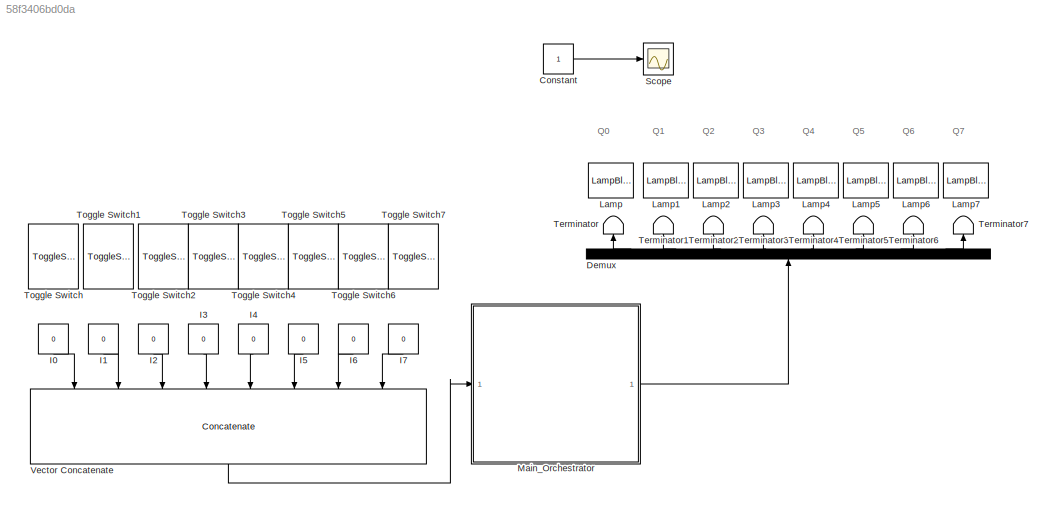
MODEL slx_58f3406bd0da
KIND model
CONFIG AbsTol = auto
CONFIG EnableMultiTasking = off
CONFIG FixedStep = 0.01
CONFIG MaxStep = auto
CONFIG MinStep = auto
CONFIG RelTol = 1e-3
CONFIG SampleTimeConstraint = Unconstrained
CONFIG Solver = FixedStepDiscrete
CONFIG SolverName = FixedStepDiscrete
CONFIG StartTime = 0.0
CONFIG StopTime = inf
BLOCK [Constant] Constant
BLOCK [Demux] Demux
  NameLocation = right
  Outputs = 8
  Ports = [1, 8]
BLOCK [Constant] I0
  NameLocation = left
  OutDataTypeStr = uint8
  Value = 0
BLOCK [Constant] I1
  NameLocation = left
  OutDataTypeStr = uint8
  Value = 0
BLOCK [Constant] I2
  NameLocation = left
  OutDataTypeStr = uint8
  Value = 0
BLOCK [Constant] I3
  NameLocation = left
  OutDataTypeStr = uint8
  Value = 0
BLOCK [Constant] I4
  NameLocation = left
  OutDataTypeStr = uint8
  Value = 0
BLOCK [Constant] I5
  NameLocation = left
  OutDataTypeStr = uint8
  Value = 0
BLOCK [Constant] I6
  NameLocation = left
  OutDataTypeStr = uint8
  Value = 0
BLOCK [Constant] I7
  NameLocation = left
  OutDataTypeStr = uint8
  Value = 0
BLOCK [LampBlock] Lamp
BLOCK [LampBlock] Lamp1
BLOCK [LampBlock] Lamp2
BLOCK [LampBlock] Lamp3
BLOCK [LampBlock] Lamp4
BLOCK [LampBlock] Lamp5
BLOCK [LampBlock] Lamp6
BLOCK [LampBlock] Lamp7
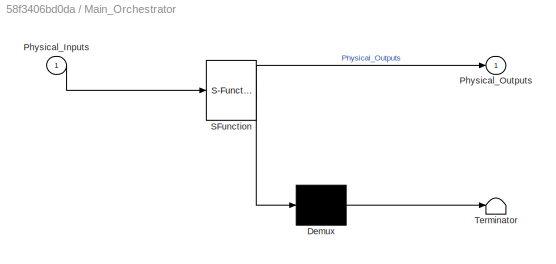
BLOCK [SubSystem] Main_Orchestrator
  ErrorFcn = Stateflow.Translate.translate
  PermitHierarchicalResolution = ExplicitOnly
  Ports = [1, 1]
  RequestExecContextInheritance = off
  SFBlockType = Chart
  TreatAsAtomicUnit = on
BLOCK [Demux] Main_Orchestrator/ Demux 
  Outputs = 1
  Ports = [1, 1]
BLOCK [S-Function] Main_Orchestrator/ SFunction 
  EnableBusSupport = on
  FunctionName = sf_sfun
  Parameters = ISA_AND,ISA_B_PUSH,ISA_CTD,ISA_CTU,ISA_END,ISA_JMP,ISA_LD,ISA_LDN,ISA_NOT,ISA_OR,ISA_OUT,ISA_RST,ISA_RSTC,ISA_SET,ISA_TOF,ISA_TON,ISA_TP,Program,TIM_PRES_LIM
  PortCounts = [1 2]
  Ports = [1, 2]
  SFcnIsStateOwnerBlock = off
  SFunctionDeploymentMode = off
  Tag = Stateflow S-Function 2
BLOCK [Terminator] Main_Orchestrator/ Terminator 
BLOCK [Inport] Main_Orchestrator/Physical_Inputs
BLOCK [Outport] Main_Orchestrator/Physical_Outputs
BLOCK [Scope] Scope
  Floating = off
  NumInputPorts = 1
  Ports = [1]
  ScopeSpecificationString = Simulink.scopes.TimeScopeBlockCfg('CurrentConfiguration', extmgr.ConfigurationSet(extmgr.Configuration('Core','General UI',true),extmgr.Configuration('Core','Source UI',true),extmgr.Configuration('Sources','WiredSimulink',true),extmgr.Configuration('Visuals','Time Domain',true),extmgr.Configuration('Tools','Plot Navigation',true),extmgr.Configuration('Tools','Measurements',true,'Version','2020a'))...<+19ch>
BLOCK [Terminator] Terminator
  NameLocation = right
BLOCK [Terminator] Terminator1
  NameLocation = right
BLOCK [Terminator] Terminator2
  NameLocation = right
BLOCK [Terminator] Terminator3
  NameLocation = right
BLOCK [Terminator] Terminator4
  NameLocation = right
BLOCK [Terminator] Terminator5
  NameLocation = right
BLOCK [Terminator] Terminator6
  NameLocation = right
BLOCK [Terminator] Terminator7
  NameLocation = right
BLOCK [ToggleSwitchBlock] Toggle Switch
  NameLocation = top
BLOCK [ToggleSwitchBlock] Toggle Switch1
  NameLocation = top
BLOCK [ToggleSwitchBlock] Toggle Switch2
  NameLocation = top
BLOCK [ToggleSwitchBlock] Toggle Switch3
  NameLocation = top
BLOCK [ToggleSwitchBlock] Toggle Switch4
  NameLocation = top
BLOCK [ToggleSwitchBlock] Toggle Switch5
  NameLocation = top
BLOCK [ToggleSwitchBlock] Toggle Switch6
  NameLocation = top
BLOCK [ToggleSwitchBlock] Toggle Switch7
  NameLocation = top
BLOCK [Concatenate] Vector Concatenate
  NameLocation = left
  NumInputs = 8
  Ports = [8, 1]
ANNOTATION (root): Q0
ANNOTATION (root): Q1
ANNOTATION (root): Q2
ANNOTATION (root): Q3
ANNOTATION (root): Q4
ANNOTATION (root): Q5
ANNOTATION (root): Q6
ANNOTATION (root): Q7
LINE Constant:1 -> Scope:1
LINE Demux:1 -> Terminator:1
LINE Demux:2 -> Terminator1:1
LINE Demux:3 -> Terminator2:1
LINE Demux:4 -> Terminator3:1
LINE Demux:5 -> Terminator4:1
LINE Demux:6 -> Terminator5:1
LINE Demux:7 -> Terminator6:1
LINE Demux:8 -> Terminator7:1
LINE I0:1 -> Vector Concatenate:1
LINE I1:1 -> Vector Concatenate:2
LINE I2:1 -> Vector Concatenate:3
LINE I3:1 -> Vector Concatenate:4
LINE I4:1 -> Vector Concatenate:5
LINE I5:1 -> Vector Concatenate:6
LINE I6:1 -> Vector Concatenate:7
LINE I7:1 -> Vector Concatenate:8
LINE Main_Orchestrator:1 -> Demux:1
LINE Vector Concatenate:1 -> Main_Orchestrator:1
CHART Main_Orchestrator states=33 transitions=189
  STATE_LABEL 'READ_INPUTS\n\nentry:\nInput_Image = Physical_Inputs;'
  STATE_LABEL 'EXECUTE_VM\n\n\n'
  STATE_LABEL 'INIT_VM\n\nentry:\nScan_Complete = 0;\nStack_Pointer = -1;\nInstruction_Pointer = 0;\n\n'
  STATE_LABEL 'EXECUTION_HUB\n\nentry:'
  STATE_LABEL 'UNIT_IO'
  STATE_LABEL 'EXEC_LD\n\nentry:\nInstruction_Pointer++;\nStack_Pointer = 0;\n\naddr = Program[Instruction_Pointer];\nInstruction_Pointer++;'
  STATE_LABEL 'EXEC_LDN\n\nentry:\nInstruction_Pointer++;\nStack_Pointer = 0;\naddr = Program[Instruction_Pointer];\nInstruction_Pointer++;'
  STATE_LABEL 'EXEC_OUT\n\nentry:\nInstruction_Pointer++;\nOutput_Image[ Program[Instruction_Pointer] ] = Stack[Stack_Pointer];\nInstruction_Pointer++;'
  STATE_LABEL 'EXEC_SET\n\nentry:\nInstruction_Pointer++;'
  STATE_LABEL 'EXEC_RST\n\nentry:\nInstruction_Pointer++;\n'
  STATE_LABEL 'END_OF_LINE\n\nentry:\nHub_Complete = 1;'
  STATE_LABEL '{Stack[Stack_Pointer] = Input_Image[addr];}'
  STATE_LABEL '[addr >= 128]'
  STATE_LABEL '[Current_Inst == ISA_LD]'
  STATE_LABEL '{Stack[Stack_Pointer] = Output_Image[addr - 128];}'
  STATE_LABEL '{Stack[Stack_Pointer] = !Input_Image[addr];}'
  STATE_LABEL '[addr >= 128]'
  STATE_LABEL '[Current_Inst == ISA_LDN]'
  STATE_LABEL '{Stack[Stack_Pointer] = !Output_Image[addr - 128];}'
  STATE_LABEL '[Current_Inst == ISA_OUT]'
  STATE_LABEL '{Output_Image[ Program[Instruction_Pointer] ] = 1;}'
  STATE_LABEL '[Stack[Stack_Pointer] == 1]'
  STATE_LABEL '{Instruction_Pointer++;}'
  STATE_LABEL '[Current_Inst == ISA_SET]'
  STATE_LABEL '{Output_Image[ Program[Instruction_Pointer] ] = 0;}'
  STATE_LABEL '[Stack[Stack_Pointer] == 1]'
  STATE_LABEL '{Instruction_Pointer++;}'
  STATE_LABEL '[Current_Inst == ISA_RST]'
  STATE_LABEL 'UNIT_LOGIC\n'
  STATE_LABEL 'EXEC_AND\n\nentry:\nInstruction_Pointer++; \nStack[Stack_Pointer] = Stack[Stack_Pointer] && Input_Image[ Program[Instruction_Pointer] ];\nInstruction_Pointer++;'
  STATE_LABEL 'EXEC_OR\n\nentry:\nInstruction_Pointer++;\nStack[Stack_Pointer] = Stack[Stack_Pointer] || Input_Image[ Program[Instruction_Pointer] ];\nInstruction_Pointer++;'
  STATE_LABEL 'EXEC_NOT\n\nentry:\nStack[Stack_Pointer] = !Stack[Stack_Pointer];\nInstruction_Pointer++;'
  STATE_LABEL 'END_OF_LINE\n\nentry:\nHub_Complete = 1;'
  STATE_LABEL '[Current_Inst == ISA_AND]'
  STATE_LABEL '[Current_Inst == ISA_OR]'
  STATE_LABEL '[Current_Inst == ISA_NOT]'
  STATE_LABEL 'UNIT_STACK'
  STATE_LABEL 'UNIT_TIMERS'
  STATE_LABEL 'EXEC_TON\n\nentry:\nInstruction_Pointer++;\nt_idx = Program[Instruction_Pointer];\nInstruction_Pointer++;\n\nt_pre = Program[Instruction_Pointer];\nInstruction_Pointer++;'
  STATE_LABEL 'EXEC_TOF\n\nentry:\nInstruction_Pointer++;\nt_idx = Program[Instruction_Pointer];\nInstruction_Pointer++;\nt_pre = Program[Instruction_Pointer];\nInstruction_Pointer++;'
CHART  states=0 transitions=0
